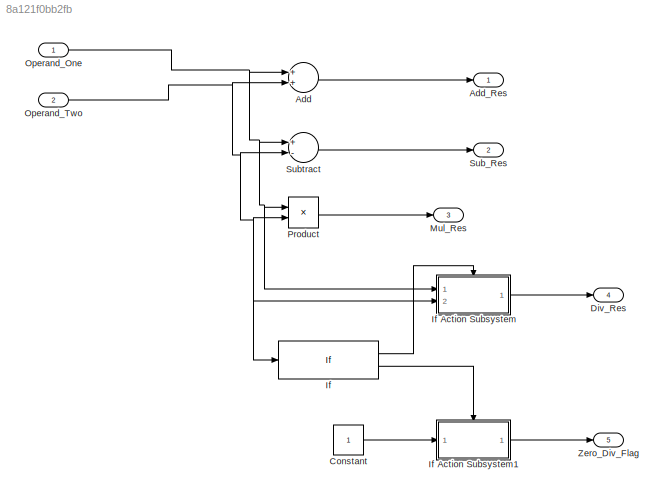
MODEL slx_8a121f0bb2fb
KIND model
CONFIG AbsTol = auto
CONFIG FixedStep = auto
CONFIG MaxStep = auto
CONFIG MinStep = auto
CONFIG RelTol = 1e-3
CONFIG SampleTimeConstraint = Unconstrained
CONFIG Solver = VariableStepAuto
CONFIG SolverMode = Auto
CONFIG SolverName = VariableStepAuto
CONFIG StartTime = 0.0
CONFIG StopTime = 10.0
BLOCK [Sum] Add
  InputSameDT = off
  OutDataTypeStr = Inherit: Inherit via internal rule
  Ports = [2, 1]
  SaturateOnIntegerOverflow = off
BLOCK [Outport] Add_Res
  IconDisplay = Port number
BLOCK [Constant] Constant
BLOCK [Outport] Div_Res 
  IconDisplay = Port number
  Port = 4
BLOCK [If] If
  Ports = [1, 2]
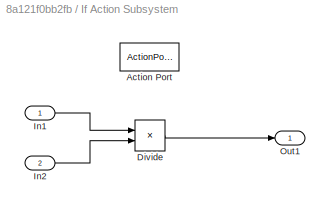
BLOCK [SubSystem] If Action Subsystem
  Ports = [2, 1, 0, 0, 0, 0, 0, 1]
  RequestExecContextInheritance = off
  TreatAsAtomicUnit = on
  Variant = off
BLOCK [ActionPort] If Action Subsystem/Action Port
  ActionType = then
BLOCK [Product] If Action Subsystem/Divide
  InputSameDT = off
  Inputs = */
  OutDataTypeStr = Inherit: Inherit via internal rule
  Ports = [2, 1]
  RndMeth = Floor
  SaturateOnIntegerOverflow = off
BLOCK [Inport] If Action Subsystem/In1
  IconDisplay = Port number
BLOCK [Inport] If Action Subsystem/In2
  IconDisplay = Port number
  Port = 2
BLOCK [Outport] If Action Subsystem/Out1
  IconDisplay = Port number
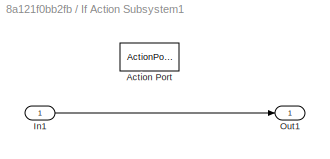
BLOCK [SubSystem] If Action Subsystem1
  Ports = [1, 1, 0, 0, 0, 0, 0, 1]
  RequestExecContextInheritance = off
  TreatAsAtomicUnit = on
  Variant = off
BLOCK [ActionPort] If Action Subsystem1/Action Port
  ActionType = else
BLOCK [Inport] If Action Subsystem1/In1
  IconDisplay = Port number
BLOCK [Outport] If Action Subsystem1/Out1
  IconDisplay = Port number
BLOCK [Outport] Mul_Res
  IconDisplay = Port number
  Port = 3
BLOCK [Inport] Operand_One
  IconDisplay = Port number
BLOCK [Inport] Operand_Two
  IconDisplay = Port number
  Port = 2
BLOCK [Product] Product
  InputSameDT = off
  OutDataTypeStr = Inherit: Inherit via internal rule
  Ports = [2, 1]
  RndMeth = Floor
  SaturateOnIntegerOverflow = off
BLOCK [Outport] Sub_Res
  IconDisplay = Port number
  Port = 2
BLOCK [Sum] Subtract
  InputSameDT = off
  Inputs = +-
  OutDataTypeStr = Inherit: Inherit via internal rule
  Ports = [2, 1]
  SaturateOnIntegerOverflow = off
BLOCK [Outport] Zero_Div_Flag
  IconDisplay = Port number
  Port = 5
LINE Add:1 -> Add_Res:1
LINE Constant:1 -> If Action Subsystem1:1
LINE If Action Subsystem/Divide:1 -> If Action Subsystem/Out1:1
LINE If Action Subsystem/In1:1 -> If Action Subsystem/Divide:1
LINE If Action Subsystem/In2:1 -> If Action Subsystem/Divide:2
LINE If Action Subsystem1/In1:1 -> If Action Subsystem1/Out1:1
LINE If Action Subsystem1:1 -> Zero_Div_Flag:1
LINE If Action Subsystem:1 -> Div_Res :1
LINE If:1 -> If Action Subsystem:ifaction
LINE If:2 -> If Action Subsystem1:ifaction
NET Operand_One:1 -> Add:1, If Action Subsystem:1, Product:1, Subtract:1
NET Operand_Two:1 -> Add:2, If Action Subsystem:2, If:1, Product:2, Subtract:2
LINE Product:1 -> Mul_Res:1
LINE Subtract:1 -> Sub_Res:1
note: NET lines group one-source signal fan-out (src -> all destinations, sorted); 1:1 wires keep LINE
